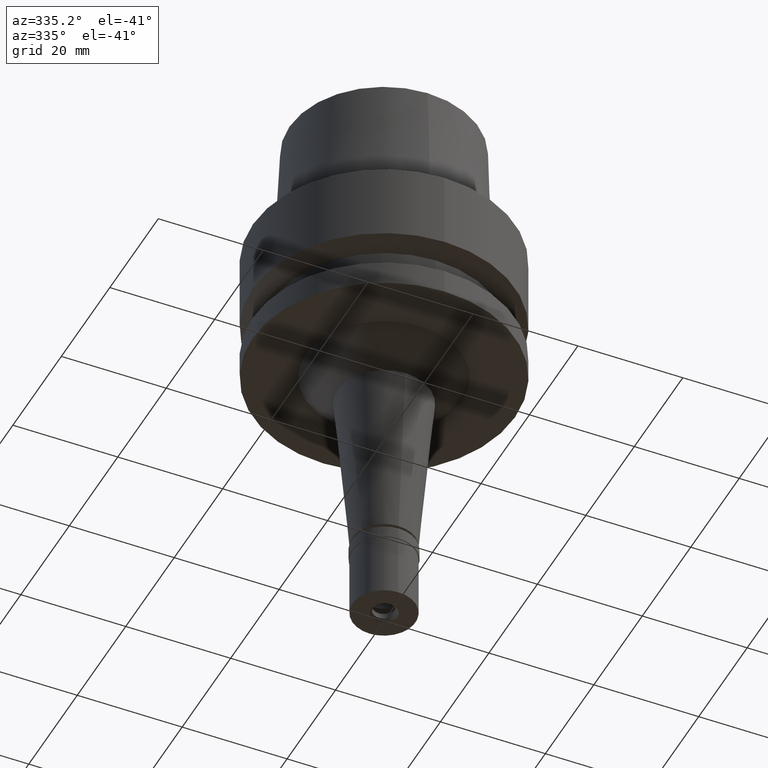
[diagram: clean part render]
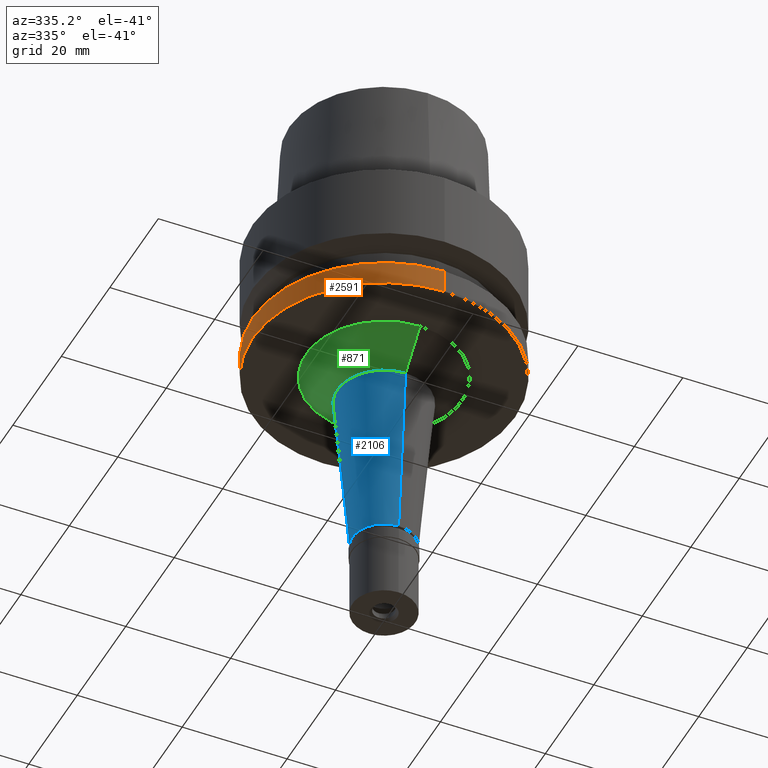
[diagram: same view with three faces highlighted in distinct colors, each labeled with its STEP entity id]
A machine part, auxiliary view with three faces highlighted in distinct colors.
Their STEP definitions:

[orange] entity #2591 — the highlighted cylindrical surface (partial cylindrical patch) has radius 25 mm, axis along (0, 0, -1).
#5 = DIRECTION ( 'NONE',  ( 0.0000000000000000000, 1.000000000000000000, 0.0000000000000000000 ) ) ;
#329 = DIRECTION ( 'NONE',  ( 0.0000000000000000000, 0.0000000000000000000, -1.000000000000000000 ) ) ;
#356 = DIRECTION ( 'NONE',  ( 0.0000000000000000000, -1.000000000000000000, 0.0000000000000000000 ) ) ;
#375 = DIRECTION ( 'NONE',  ( 0.0000000000000000000, 0.0000000000000000000, 1.000000000000000000 ) ) ;
#416 = ORIENTED_EDGE ( 'NONE', *, *, #2337, .T. ) ;
#470 = ORIENTED_EDGE ( 'NONE', *, *, #2029, .T. ) ;
#558 = VERTEX_POINT ( 'NONE', #2431 ) ;
#739 = VERTEX_POINT ( 'NONE', #2330 ) ;
#836 = FACE_OUTER_BOUND ( 'NONE', #2490, .T. ) ;
#908 = CARTESIAN_POINT ( 'NONE',  ( 0.0000000000000000000, -25.00000000000000000, -21.38164558085999900 ) ) ;
#947 = CARTESIAN_POINT ( 'NONE',  ( 0.0000000000000000000, 0.0000000000000000000, -21.38164558085999900 ) ) ;
#1096 = CARTESIAN_POINT ( 'NONE',  ( 0.0000000000000000000, -25.00000000000000000, -21.38164558085999900 ) ) ;
#1157 = ORIENTED_EDGE ( 'NONE', *, *, #2360, .T. ) ;
#1167 = LINE ( 'NONE', #2600, #2137 ) ;
#1272 = AXIS2_PLACEMENT_3D ( 'NONE', #947, #2387, #356 ) ;
#1281 = DIRECTION ( 'NONE',  ( 0.0000000000000000000, -1.000000000000000000, 0.0000000000000000000 ) ) ;
#1348 = VERTEX_POINT ( 'NONE', #908 ) ;
#1483 = CIRCLE ( 'NONE', #1272, 25.00000000000000000 ) ;
#1537 = DIRECTION ( 'NONE',  ( 0.0000000000000000000, 0.0000000000000000000, -1.000000000000000000 ) ) ;
#1615 = EDGE_CURVE ( 'NONE', #1348, #558, #2168, .T. ) ;
#1749 = CARTESIAN_POINT ( 'NONE',  ( 0.0000000000000000000, 25.00000000000000000, -26.00000000000000000 ) ) ;
#1897 = VECTOR ( 'NONE', #1537, 1000.000000000000000 ) ;
#2029 = EDGE_CURVE ( 'NONE', #2239, #558, #2592, .T. ) ;
#2074 = CARTESIAN_POINT ( 'NONE',  ( 0.0000000000000000000, 0.0000000000000000000, -26.00000000000000000 ) ) ;
#2137 = VECTOR ( 'NONE', #329, 1000.000000000000000 ) ;
#2168 = LINE ( 'NONE', #1096, #1897 ) ;
#2239 = VERTEX_POINT ( 'NONE', #1749 ) ;
#2285 = DIRECTION ( 'NONE',  ( 0.0000000000000000000, 0.0000000000000000000, -1.000000000000000000 ) ) ;
#2330 = CARTESIAN_POINT ( 'NONE',  ( 0.0000000000000000000, 25.00000000000000000, -21.38164558085999900 ) ) ;
#2337 = EDGE_CURVE ( 'NONE', #1348, #739, #1483, .T. ) ;
#2360 = EDGE_CURVE ( 'NONE', #739, #2239, #1167, .T. ) ;
#2387 = DIRECTION ( 'NONE',  ( 0.0000000000000000000, 0.0000000000000000000, -1.000000000000000000 ) ) ;
#2431 = CARTESIAN_POINT ( 'NONE',  ( 0.0000000000000000000, -25.00000000000000000, -26.00000000000000000 ) ) ;
#2462 = CYLINDRICAL_SURFACE ( 'NONE', #2666, 25.00000000000000000 ) ;
#2465 = AXIS2_PLACEMENT_3D ( 'NONE', #2074, #375, #5 ) ;
#2490 = EDGE_LOOP ( 'NONE', ( #470, #2551, #416, #1157 ) ) ;
#2551 = ORIENTED_EDGE ( 'NONE', *, *, #1615, .F. ) ;
#2591 = ADVANCED_FACE ( 'NONE', ( #836 ), #2462, .T. ) ;
#2592 = CIRCLE ( 'NONE', #2465, 25.00000000000000000 ) ;
#2600 = CARTESIAN_POINT ( 'NONE',  ( 0.0000000000000000000, 25.00000000000000000, -21.38164558085999900 ) ) ;
#2666 = AXIS2_PLACEMENT_3D ( 'NONE', #2685, #2285, #1281 ) ;
#2685 = CARTESIAN_POINT ( 'NONE',  ( 0.0000000000000000000, 0.0000000000000000000, 30.05000000000000071 ) ) ;

[blue] entity #2106 — the highlighted conical surface has half-angle 5 deg.
#40 = CARTESIAN_POINT ( 'NONE',  ( 0.0000000000000000000, 0.0000000000000000000, -64.79999999999999716 ) ) ;
#49 = LINE ( 'NONE', #886, #57 ) ;
#57 = VECTOR ( 'NONE', #1326, 1000.000000000000000 ) ;
#64 = CIRCLE ( 'NONE', #2416, 8.869628163650000729 ) ;
#168 = CARTESIAN_POINT ( 'NONE',  ( 0.0000000000000000000, -6.000000000000000000, -64.79999999999999716 ) ) ;
#207 = CARTESIAN_POINT ( 'NONE',  ( 0.0000000000000000000, -8.869628163650000729, -32.00000000000000000 ) ) ;
#243 = ORIENTED_EDGE ( 'NONE', *, *, #497, .T. ) ;
#322 = VECTOR ( 'NONE', #1055, 1000.000000000000000 ) ;
#420 = ORIENTED_EDGE ( 'NONE', *, *, #2135, .T. ) ;
#497 = EDGE_CURVE ( 'NONE', #2042, #1238, #1645, .T. ) ;
#660 = DIRECTION ( 'NONE',  ( 0.0000000000000000000, 0.0000000000000000000, 1.000000000000000000 ) ) ;
#838 = EDGE_CURVE ( 'NONE', #1277, #2042, #49, .T. ) ;
#875 = CARTESIAN_POINT ( 'NONE',  ( 0.0000000000000000000, 0.0000000000000000000, -32.00000000000000000 ) ) ;
#886 = CARTESIAN_POINT ( 'NONE',  ( 0.0000000000000000000, 8.869628163650000729, -32.00000000000000000 ) ) ;
#888 = AXIS2_PLACEMENT_3D ( 'NONE', #40, #1165, #1716 ) ;
#986 = ORIENTED_EDGE ( 'NONE', *, *, #838, .T. ) ;
#1055 = DIRECTION ( 'NONE',  ( 0.0000000000000000000, 0.08715574274765398866, -0.9961946980917458783 ) ) ;
#1066 = CARTESIAN_POINT ( 'NONE',  ( 0.0000000000000000000, 8.869628163650000729, -32.00000000000000000 ) ) ;
#1165 = DIRECTION ( 'NONE',  ( 0.0000000000000000000, 0.0000000000000000000, 1.000000000000000000 ) ) ;
#1238 = VERTEX_POINT ( 'NONE', #168 ) ;
#1256 = VERTEX_POINT ( 'NONE', #207 ) ;
#1277 = VERTEX_POINT ( 'NONE', #1066 ) ;
#1318 = DIRECTION ( 'NONE',  ( 0.0000000000000000000, 1.000000000000000000, 0.0000000000000000000 ) ) ;
#1326 = DIRECTION ( 'NONE',  ( 0.0000000000000000000, -0.08715574274765398866, -0.9961946980917458783 ) ) ;
#1355 = FACE_OUTER_BOUND ( 'NONE', #2338, .T. ) ;
#1486 = CARTESIAN_POINT ( 'NONE',  ( 0.0000000000000000000, 6.000000000000000000, -64.79999999999999716 ) ) ;
#1605 = AXIS2_PLACEMENT_3D ( 'NONE', #1912, #660, #1318 ) ;
#1645 = CIRCLE ( 'NONE', #888, 6.000000000000000000 ) ;
#1665 = LINE ( 'NONE', #2498, #322 ) ;
#1716 = DIRECTION ( 'NONE',  ( 0.0000000000000000000, 1.000000000000000000, 0.0000000000000000000 ) ) ;
#1738 = CONICAL_SURFACE ( 'NONE', #1605, 7.434814081825000365, 0.08726646259969973729 ) ;
#1912 = CARTESIAN_POINT ( 'NONE',  ( 0.0000000000000000000, 0.0000000000000000000, -48.39999999999999858 ) ) ;
#1948 = DIRECTION ( 'NONE',  ( 0.0000000000000000000, -1.000000000000000000, 0.0000000000000000000 ) ) ;
#1960 = EDGE_CURVE ( 'NONE', #1256, #1238, #1665, .T. ) ;
#2042 = VERTEX_POINT ( 'NONE', #1486 ) ;
#2106 = ADVANCED_FACE ( 'NONE', ( #1355 ), #1738, .T. ) ;
#2135 = EDGE_CURVE ( 'NONE', #1256, #1277, #64, .T. ) ;
#2195 = ORIENTED_EDGE ( 'NONE', *, *, #1960, .F. ) ;
#2333 = DIRECTION ( 'NONE',  ( 0.0000000000000000000, 0.0000000000000000000, -1.000000000000000000 ) ) ;
#2338 = EDGE_LOOP ( 'NONE', ( #243, #2195, #420, #986 ) ) ;
#2416 = AXIS2_PLACEMENT_3D ( 'NONE', #875, #2333, #1948 ) ;
#2498 = CARTESIAN_POINT ( 'NONE',  ( 0.0000000000000000000, -8.869628163650000729, -32.00000000000000000 ) ) ;

[green] entity #871 — the highlighted conical surface has half-angle 45 deg.
#22 = CARTESIAN_POINT ( 'NONE',  ( 0.0000000000000000000, 0.0000000000000000000, -29.00000000000000000 ) ) ;
#50 = CIRCLE ( 'NONE', #810, 14.86962816365000073 ) ;
#64 = CIRCLE ( 'NONE', #2416, 8.869628163650000729 ) ;
#206 = DIRECTION ( 'NONE',  ( 0.0000000000000000000, -0.7071067811864980568, -0.7071067811865969777 ) ) ;
#207 = CARTESIAN_POINT ( 'NONE',  ( 0.0000000000000000000, -8.869628163650000729, -32.00000000000000000 ) ) ;
#214 = DIRECTION ( 'NONE',  ( 0.0000000000000000000, 1.000000000000000000, 0.0000000000000000000 ) ) ;
#418 = DIRECTION ( 'NONE',  ( 0.0000000000000000000, -1.000000000000000000, 0.0000000000000000000 ) ) ;
#443 = VECTOR ( 'NONE', #509, 1000.000000000000000 ) ;
#509 = DIRECTION ( 'NONE',  ( 0.0000000000000000000, 0.7071067811864980568, -0.7071067811865969777 ) ) ;
#605 = LINE ( 'NONE', #2085, #703 ) ;
#703 = VECTOR ( 'NONE', #206, 1000.000000000000000 ) ;
#750 = AXIS2_PLACEMENT_3D ( 'NONE', #22, #1056, #214 ) ;
#777 = EDGE_CURVE ( 'NONE', #1525, #1256, #1558, .T. ) ;
#805 = ORIENTED_EDGE ( 'NONE', *, *, #2135, .F. ) ;
#810 = AXIS2_PLACEMENT_3D ( 'NONE', #844, #1084, #418 ) ;
#844 = CARTESIAN_POINT ( 'NONE',  ( 0.0000000000000000000, 0.0000000000000000000, -26.00000000000000000 ) ) ;
#858 = EDGE_CURVE ( 'NONE', #1525, #1089, #50, .T. ) ;
#871 = ADVANCED_FACE ( 'NONE', ( #2518 ), #1262, .T. ) ;
#875 = CARTESIAN_POINT ( 'NONE',  ( 0.0000000000000000000, 0.0000000000000000000, -32.00000000000000000 ) ) ;
#997 = CARTESIAN_POINT ( 'NONE',  ( 0.0000000000000000000, 14.86962816365000073, -26.00000000000000000 ) ) ;
#1056 = DIRECTION ( 'NONE',  ( 0.0000000000000000000, 0.0000000000000000000, 1.000000000000000000 ) ) ;
#1066 = CARTESIAN_POINT ( 'NONE',  ( 0.0000000000000000000, 8.869628163650000729, -32.00000000000000000 ) ) ;
#1084 = DIRECTION ( 'NONE',  ( 0.0000000000000000000, 0.0000000000000000000, -1.000000000000000000 ) ) ;
#1089 = VERTEX_POINT ( 'NONE', #997 ) ;
#1256 = VERTEX_POINT ( 'NONE', #207 ) ;
#1262 = CONICAL_SURFACE ( 'NONE', #750, 11.86962816365000073, 0.7853981633972997312 ) ;
#1277 = VERTEX_POINT ( 'NONE', #1066 ) ;
#1314 = EDGE_CURVE ( 'NONE', #1089, #1277, #605, .T. ) ;
#1502 = EDGE_LOOP ( 'NONE', ( #805, #1668, #2200, #2115 ) ) ;
#1525 = VERTEX_POINT ( 'NONE', #2373 ) ;
#1558 = LINE ( 'NONE', #2172, #443 ) ;
#1668 = ORIENTED_EDGE ( 'NONE', *, *, #777, .F. ) ;
#1948 = DIRECTION ( 'NONE',  ( 0.0000000000000000000, -1.000000000000000000, 0.0000000000000000000 ) ) ;
#2085 = CARTESIAN_POINT ( 'NONE',  ( 0.0000000000000000000, 14.86962816365000073, -26.00000000000000000 ) ) ;
#2115 = ORIENTED_EDGE ( 'NONE', *, *, #1314, .T. ) ;
#2135 = EDGE_CURVE ( 'NONE', #1256, #1277, #64, .T. ) ;
#2172 = CARTESIAN_POINT ( 'NONE',  ( 0.0000000000000000000, -14.86962816365000073, -26.00000000000000000 ) ) ;
#2200 = ORIENTED_EDGE ( 'NONE', *, *, #858, .T. ) ;
#2333 = DIRECTION ( 'NONE',  ( 0.0000000000000000000, 0.0000000000000000000, -1.000000000000000000 ) ) ;
#2373 = CARTESIAN_POINT ( 'NONE',  ( 0.0000000000000000000, -14.86962816365000073, -26.00000000000000000 ) ) ;
#2416 = AXIS2_PLACEMENT_3D ( 'NONE', #875, #2333, #1948 ) ;
#2518 = FACE_OUTER_BOUND ( 'NONE', #1502, .T. ) ;